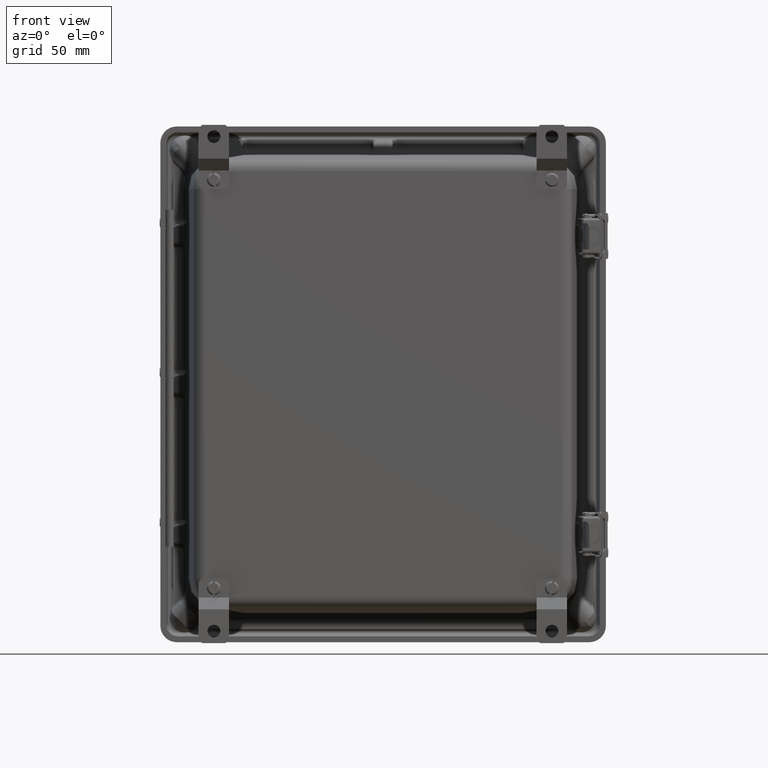
[diagram: clean part render]
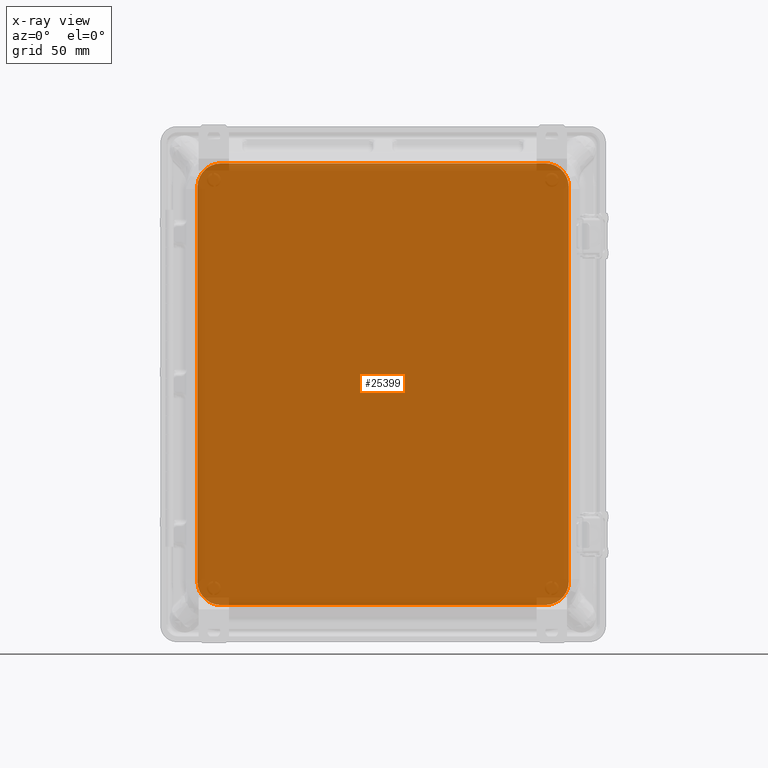
[diagram: x-ray — body ghosted, one internal face saturated and labeled with its STEP entity id]
A machine part, front view, then the same camera in x-ray: the body is ghosted and one INTERNAL B-rep face — a face not visible from any outside direction — is saturated and labeled: STEP entity #25399.
In plain terms, the highlighted planar face has unit normal (0, 1, 0).
Its self-contained STEP definition (entity closure, byte-faithful):
#785 = ORIENTED_EDGE ( 'NONE', *, *, #3679, .T. ) ;
#2153 = EDGE_CURVE ( 'NONE', #7417, #43203, #29172, .T. ) ;
#2783 = ORIENTED_EDGE ( 'NONE', *, *, #27057, .T. ) ;
#2852 = CARTESIAN_POINT ( 'NONE',  ( 5.267564027494511700, -0.8700000000000000000, 4.958872131582905900 ) ) ;
#2979 = VERTEX_POINT ( 'NONE', #44949 ) ;
#3489 = DIRECTION ( 'NONE',  ( 0.0000000000000000000, 0.0000000000000000000, 1.000000000000000000 ) ) ;
#3679 = EDGE_CURVE ( 'NONE', #24911, #12729, #37108, .T. ) ;
#5935 = DIRECTION ( 'NONE',  ( 0.0000000000000000000, -1.000000000000000000, 0.0000000000000000000 ) ) ;
#6175 = VECTOR ( 'NONE', #36847, 39.37007874015748100 ) ;
#6717 = CARTESIAN_POINT ( 'NONE',  ( 5.267564027494515200, -0.8700000000000000000, -4.329000000000000600 ) ) ;
#7243 = AXIS2_PLACEMENT_3D ( 'NONE', #6717, #35822, #10916 ) ;
#7417 = VERTEX_POINT ( 'NONE', #17753 ) ;
#10776 = ORIENTED_EDGE ( 'NONE', *, *, #2153, .T. ) ;
#10916 = DIRECTION ( 'NONE',  ( 0.0000000000000000000, 0.0000000000000000000, -1.000000000000000000 ) ) ;
#11306 = DIRECTION ( 'NONE',  ( -0.0000000000000000000, 1.000000000000000000, -0.0000000000000000000 ) ) ;
#11868 = EDGE_CURVE ( 'NONE', #13272, #24911, #16646, .T. ) ;
#12729 = VERTEX_POINT ( 'NONE', #39007 ) ;
#13272 = VERTEX_POINT ( 'NONE', #47847 ) ;
#13961 = VERTEX_POINT ( 'NONE', #2852 ) ;
#15216 = CARTESIAN_POINT ( 'NONE',  ( 5.897436159077417800, -0.8700000000000000000, -4.328999999999996200 ) ) ;
#16646 = CIRCLE ( 'NONE', #22645, 0.6298721315829042300 ) ;
#17753 = CARTESIAN_POINT ( 'NONE',  ( 5.897436159077420500, -0.8700000000000000000, 4.328999999999996200 ) ) ;
#18095 = VECTOR ( 'NONE', #45002, 39.37007874015748100 ) ;
#19423 = DIRECTION ( 'NONE',  ( -0.0000000000000000000, 1.000000000000000000, -0.0000000000000000000 ) ) ;
#20879 = DIRECTION ( 'NONE',  ( 1.000000000000000000, 0.0000000000000000000, -1.037148056982565400E-016 ) ) ;
#21094 = AXIS2_PLACEMENT_3D ( 'NONE', #36216, #11306, #40415 ) ;
#22645 = AXIS2_PLACEMENT_3D ( 'NONE', #47778, #22810, #51929 ) ;
#22810 = DIRECTION ( 'NONE',  ( -0.0000000000000000000, 1.000000000000000000, -0.0000000000000000000 ) ) ;
#22931 = EDGE_CURVE ( 'NONE', #12729, #2979, #35811, .T. ) ;
#23418 = AXIS2_PLACEMENT_3D ( 'NONE', #44402, #19423, #48568 ) ;
#23495 = VECTOR ( 'NONE', #20879, 39.37007874015748100 ) ;
#24416 = CARTESIAN_POINT ( 'NONE',  ( 5.267564027494509900, -0.8700000000000000000, -4.958872131582904100 ) ) ;
#24911 = VERTEX_POINT ( 'NONE', #39259 ) ;
#25399 = ADVANCED_FACE ( 'NONE', ( #46664 ), #26468, .F. ) ;
#26450 = EDGE_CURVE ( 'NONE', #13961, #7417, #42031, .T. ) ;
#26468 = PLANE ( 'NONE',  #30881 ) ;
#27057 = EDGE_CURVE ( 'NONE', #27640, #13272, #39366, .T. ) ;
#27640 = VERTEX_POINT ( 'NONE', #24416 ) ;
#28387 = CARTESIAN_POINT ( 'NONE',  ( -5.898308148719196200, -0.8700000000000000000, -5.511500000000000700 ) ) ;
#28442 = ORIENTED_EDGE ( 'NONE', *, *, #26450, .T. ) ;
#29172 = LINE ( 'NONE', #53324, #18095 ) ;
#30846 = CARTESIAN_POINT ( 'NONE',  ( -6.449500000000001300, -0.8700000000000000000, -5.511500000000000700 ) ) ;
#30881 = AXIS2_PLACEMENT_3D ( 'NONE', #30846, #5935, #35027 ) ;
#33167 = ORIENTED_EDGE ( 'NONE', *, *, #44345, .T. ) ;
#34616 = LINE ( 'NONE', #41687, #23495 ) ;
#35027 = DIRECTION ( 'NONE',  ( 0.0000000000000000000, -0.0000000000000000000, -1.000000000000000000 ) ) ;
#35290 = EDGE_LOOP ( 'NONE', ( #785, #53798, #33167, #28442, #10776, #50894, #2783, #42514 ) ) ;
#35811 = CIRCLE ( 'NONE', #23418, 0.6298721315829042300 ) ;
#35822 = DIRECTION ( 'NONE',  ( -0.0000000000000000000, 1.000000000000000000, -0.0000000000000000000 ) ) ;
#36216 = CARTESIAN_POINT ( 'NONE',  ( 5.267564027494515200, -0.8700000000000000000, 4.329000000000000600 ) ) ;
#36675 = CARTESIAN_POINT ( 'NONE',  ( -6.449500000000001300, -0.8700000000000000000, -4.958872131582904100 ) ) ;
#36847 = DIRECTION ( 'NONE',  ( -1.000000000000000000, 0.0000000000000000000, 0.0000000000000000000 ) ) ;
#37108 = LINE ( 'NONE', #28387, #38431 ) ;
#37428 = EDGE_CURVE ( 'NONE', #43203, #27640, #41599, .T. ) ;
#38431 = VECTOR ( 'NONE', #3489, 39.37007874015748100 ) ;
#39007 = CARTESIAN_POINT ( 'NONE',  ( -5.898308148719196200, -0.8700000000000000000, 4.328999999999997100 ) ) ;
#39259 = CARTESIAN_POINT ( 'NONE',  ( -5.898308148719197100, -0.8700000000000000000, -4.328999999999995300 ) ) ;
#39366 = LINE ( 'NONE', #36675, #6175 ) ;
#40415 = DIRECTION ( 'NONE',  ( 0.0000000000000000000, 0.0000000000000000000, -1.000000000000000000 ) ) ;
#41599 = CIRCLE ( 'NONE', #7243, 0.6298721315829042300 ) ;
#41687 = CARTESIAN_POINT ( 'NONE',  ( -6.449500000000000500, -0.8700000000000000000, 4.958872131582908500 ) ) ;
#42031 = CIRCLE ( 'NONE', #21094, 0.6298721315829042300 ) ;
#42514 = ORIENTED_EDGE ( 'NONE', *, *, #11868, .T. ) ;
#43203 = VERTEX_POINT ( 'NONE', #15216 ) ;
#44345 = EDGE_CURVE ( 'NONE', #2979, #13961, #34616, .T. ) ;
#44402 = CARTESIAN_POINT ( 'NONE',  ( -5.268436017136293600, -0.8700000000000000000, 4.329000000000001500 ) ) ;
#44949 = CARTESIAN_POINT ( 'NONE',  ( -5.268436017136289200, -0.8700000000000000000, 4.958872131582906700 ) ) ;
#45002 = DIRECTION ( 'NONE',  ( -1.262115035187926200E-016, 0.0000000000000000000, -1.000000000000000000 ) ) ;
#46664 = FACE_OUTER_BOUND ( 'NONE', #35290, .T. ) ;
#47778 = CARTESIAN_POINT ( 'NONE',  ( -5.268436017136293600, -0.8700000000000000000, -4.329000000000000600 ) ) ;
#47847 = CARTESIAN_POINT ( 'NONE',  ( -5.268436017136289200, -0.8700000000000000000, -4.958872131582904100 ) ) ;
#48568 = DIRECTION ( 'NONE',  ( 0.0000000000000000000, 0.0000000000000000000, -1.000000000000000000 ) ) ;
#50894 = ORIENTED_EDGE ( 'NONE', *, *, #37428, .T. ) ;
#51929 = DIRECTION ( 'NONE',  ( 0.0000000000000000000, 0.0000000000000000000, -1.000000000000000000 ) ) ;
#53324 = CARTESIAN_POINT ( 'NONE',  ( 5.897436159077417800, -0.8700000000000000000, -5.511500000000001600 ) ) ;
#53798 = ORIENTED_EDGE ( 'NONE', *, *, #22931, .T. ) ;